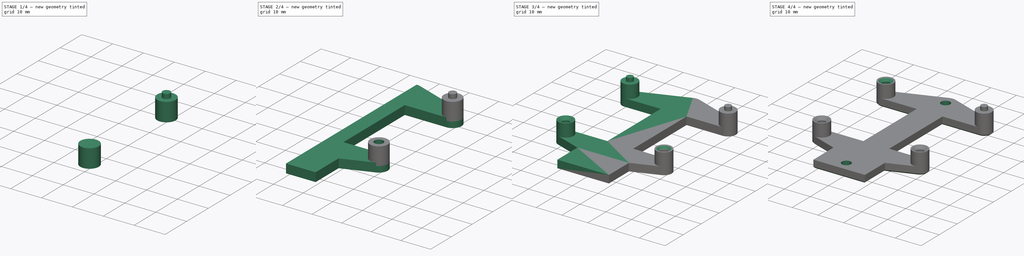
[diagram: build sequence overview — one tinted view per stage of 4, left to right]
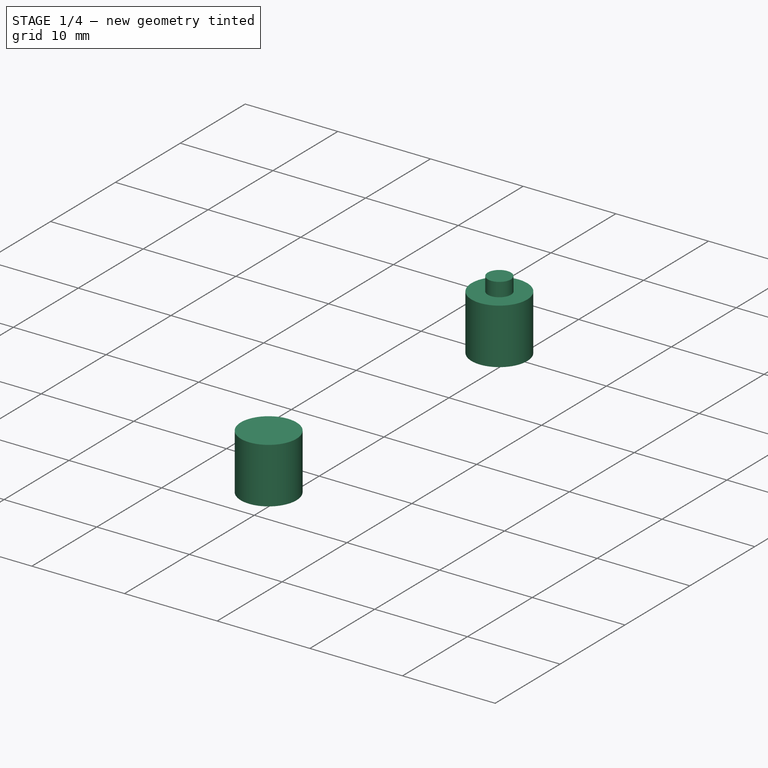
[diagram: stage 1 of 4 — iso view after this stage's code; geometry added in this stage tinted green]
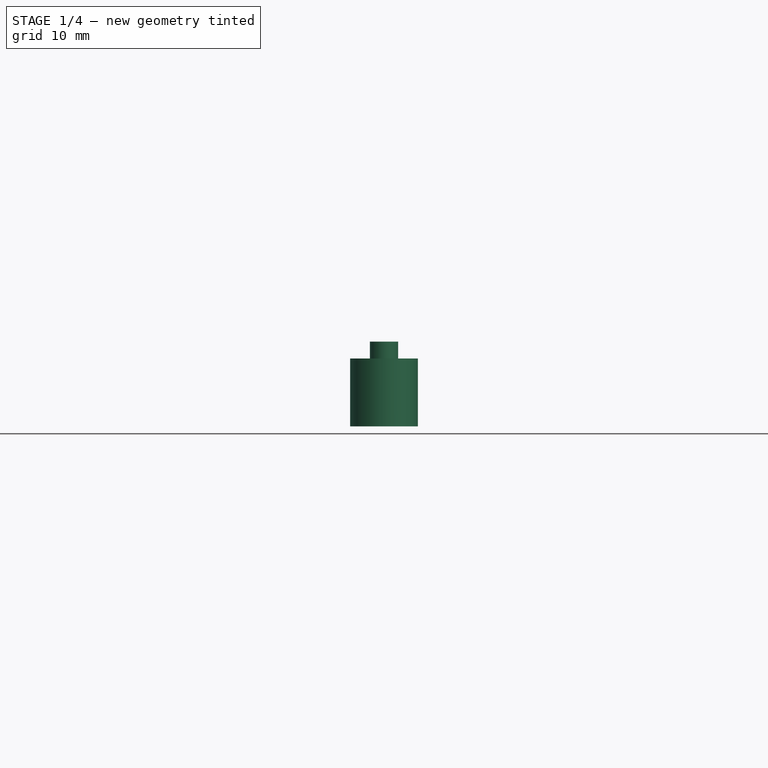
[diagram: stage 1 of 4 — front view after this stage's code; geometry added in this stage tinted green]
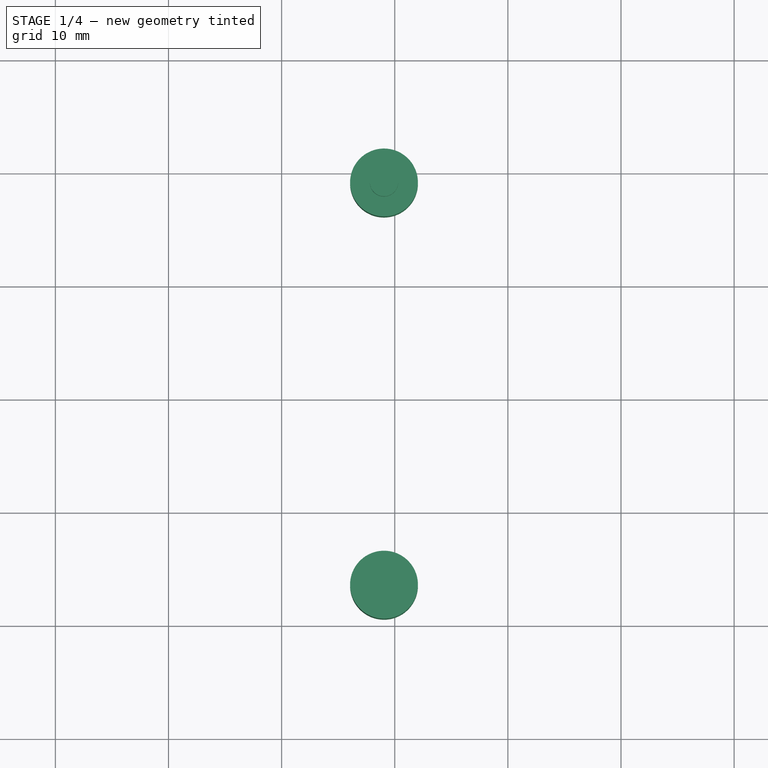
[diagram: stage 1 of 4 — top view after this stage's code; geometry added in this stage tinted green]
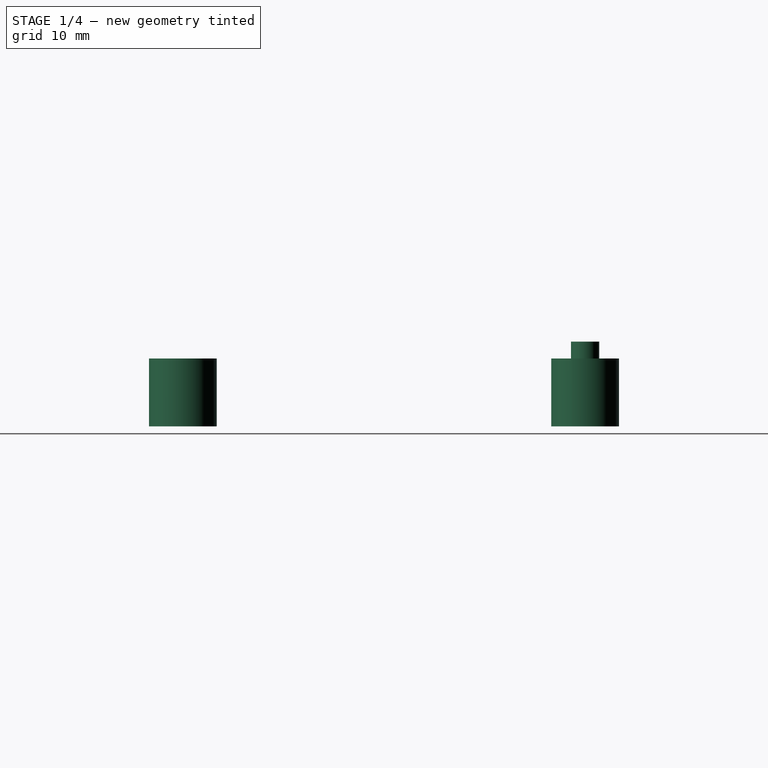
[diagram: stage 1 of 4 — right view after this stage's code; geometry added in this stage tinted green]
FCSTD DOCUMENT  (FreeCAD 0.14R3692 (Git))
Label: Addon-KeypadBracket-5Buttons
License: CC-BY 3.0
LicenseURL: http://creativecommons.org/licenses/by/3.0/
objects: Sketcher::SketchObject×4, Part::Cylinder×3, Part::MultiFuse×3, PartDesign::Pocket×3, Part::Chamfer×3, PartDesign::Pad×1, Part::Mirroring×1
note: 22 computed .brp shape members not serialized (recipe doc carries the construction recipe); baked Part::Feature solids carry a one-line shape summary decoded from their .brp

FEATURE [Part::Cylinder] Cylinder
  Angle = 360
  Height = 6
  Placement = pos=(19.05,13.5705,2) rot=(0,0,1;0rad)
  Radius = 3
FEATURE [Part::Cylinder] Cylinder001
  Angle = 360
  Height = 7.5
  Placement = pos=(0,0,2) rot=(0,0,1;0rad)
  Radius = 1.25
FEATURE [Part::Cylinder] Cylinder002
  Angle = 360
  Height = 6
  Placement = pos=(0,0,2) rot=(0,0,1;0rad)
  Radius = 3
FEATURE [Part::MultiFuse] Fusion
  Placement = pos=(19.05,49.1305,0) rot=(0,0,1;0rad)
  Shapes = -> [Cylinder001,Cylinder002]
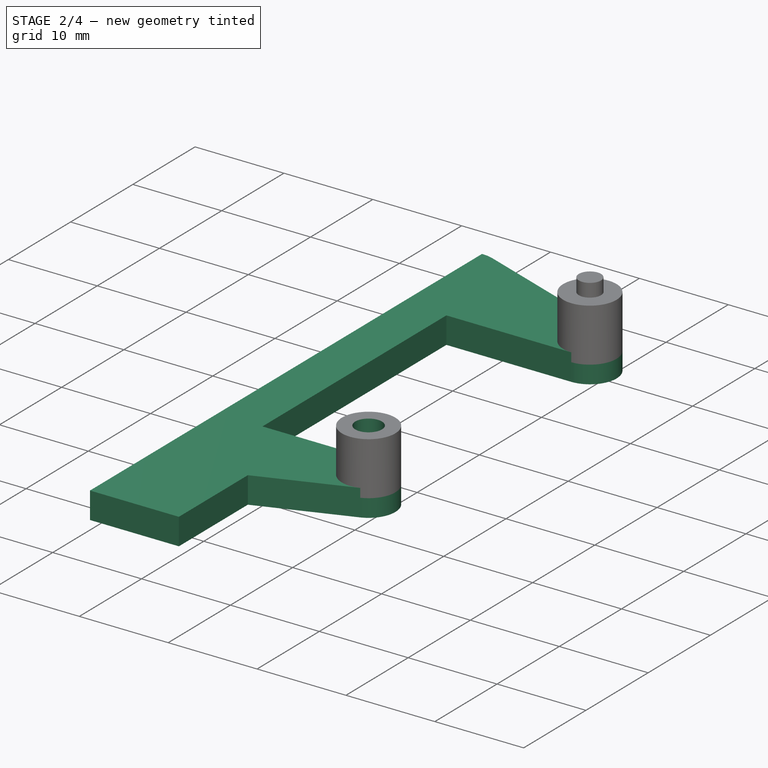
[diagram: stage 2 of 4 — iso view after this stage's code; geometry added in this stage tinted green]
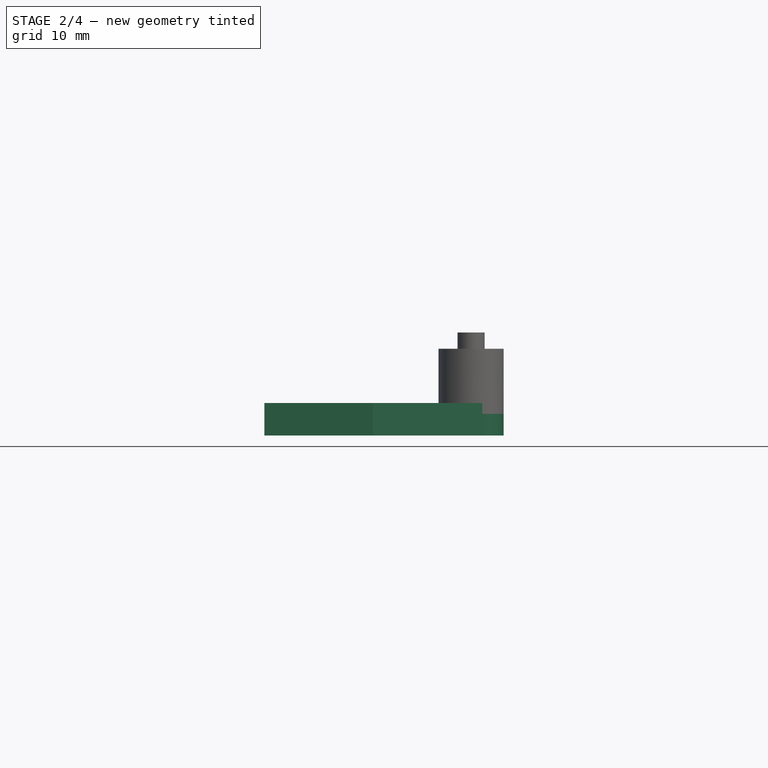
[diagram: stage 2 of 4 — front view after this stage's code; geometry added in this stage tinted green]
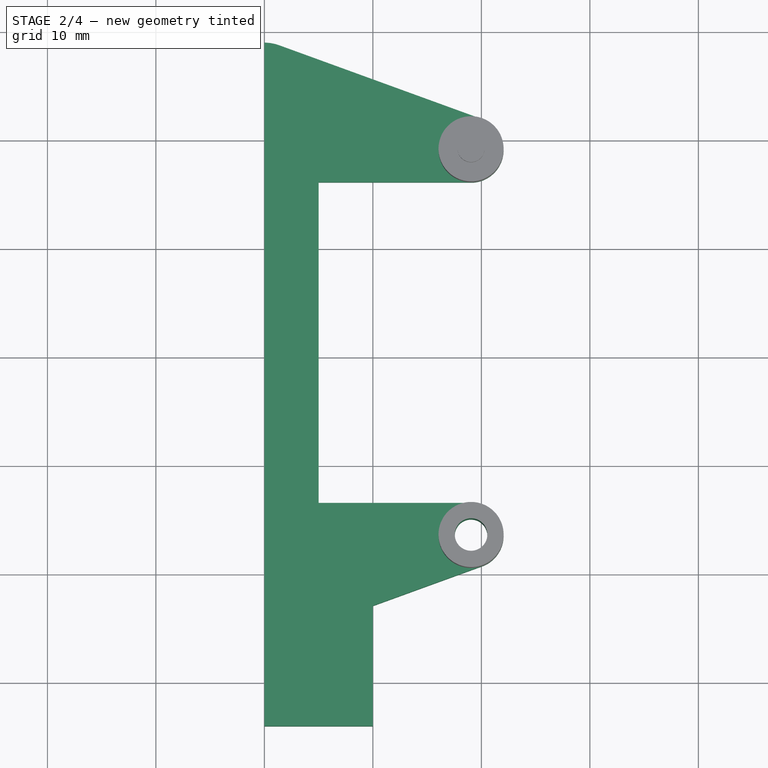
[diagram: stage 2 of 4 — top view after this stage's code; geometry added in this stage tinted green]
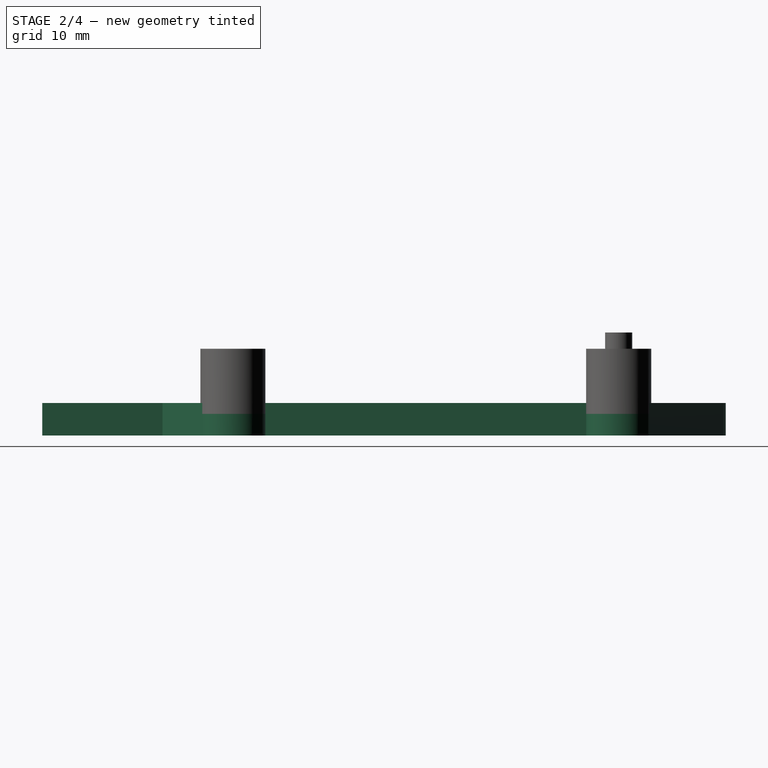
[diagram: stage 2 of 4 — right view after this stage's code; geometry added in this stage tinted green]
FEATURE [Sketcher::SketchObject] Sketch
  sketch-geometry (13):
    g0: GeomPoint [constr] X=0 Y=55 Z=0
    g1: LineSegment StartX=0 StartY=-4 StartZ=0 EndX=10 EndY=-4 EndZ=0
    g2: LineSegment StartX=10 StartY=-4 StartZ=0 EndX=10 EndY=7.08408 EndZ=0
    g3: LineSegment StartX=10 StartY=7.08408 StartZ=0 EndX=20.0761 EndY=10.7515 EndZ=0
    g4: ArcOfCircle CenterX=19.05 CenterY=13.5705 CenterZ=0 NormalX=0 NormalY=0 NormalZ=1 Radius=3 StartAngle=5.06145 EndAngle=7.85398
    g5: LineSegment StartX=19.05 StartY=16.5705 StartZ=0 EndX=5 EndY=16.5705 EndZ=0
    g6: LineSegment StartX=5 StartY=16.5705 StartZ=0 EndX=5 EndY=46.1305 EndZ=0
    g7: LineSegment StartX=5 StartY=46.1305 StartZ=0 EndX=19.05 EndY=46.1305 EndZ=0
    g8: ArcOfCircle CenterX=19.05 CenterY=49.1305 CenterZ=0 NormalX=0 NormalY=0 NormalZ=1 Radius=3 StartAngle=4.71239 EndAngle=7.50492
    g9: LineSegment StartX=20.0761 StartY=51.9496 StartZ=0 EndX=1.36808 EndY=58.7588 EndZ=0
    g10: ArcOfCircle CenterX=0 CenterY=55 CenterZ=0 NormalX=0 NormalY=0 NormalZ=1 Radius=4 StartAngle=1.22173 EndAngle=1.5708
    g11: LineSegment StartX=0 StartY=59 StartZ=0 EndX=0 EndY=-4 EndZ=0
    g12: LineSegment [constr] StartX=19.05 StartY=49.1305 StartZ=0 EndX=19.05 EndY=13.5705 EndZ=0
  constraints (34):
    c: PointOnObject(g0,g-2)
    c: PointOnObject(g1,g-2)
    c: Horizontal(g1)
    c: Coincident(g1,g2)
    c: Vertical(g2)
    c: Coincident(g2,g3)
    c: Tangent(g3,g4)
    c: Tangent(g4,g5)
    c: Coincident(g5,g6)
    c: Vertical(g6)
    c: Coincident(g6,g7)
    c: Tangent(g7,g8)
    c: Tangent(g8,g9)
    c: Tangent(g9,g10)
    c: Coincident(g10,g11)
    c: Coincident(g11,g1)
    c: Perpendicular(g11,g10)
    c: Coincident(g10,g0)
    c: Radius(g10) = 4
    c: Radius(g8) = 3
    c: Equal(g8,g4)
    c: Angle(g9,g7) = 0.349066
    c: Angle(g5,g3) = 0.349066
    c: Coincident(g12,g8)
    c: Coincident(g12,g4)
    c: Vertical(g12)
    c: DistanceY(g12) = -35.56
    c: DistanceX(g1) = 10
    c: DistanceX(g5) = 5
    c: DistanceX(g-1,g4) = 19.05
    c: Horizontal(g5)
    c: Horizontal(g7)
    c: DistanceY(g-1,g1) = -4
    c: DistanceY(g-1,g0) = 55
FEATURE [PartDesign::Pad] Pad
  Length = 3
  Length2 = 100
  Sketch = -> Sketch
  Type = 0
FEATURE [Part::MultiFuse] Fusion004
  Shapes = -> [Fusion,Cylinder,Pad]
FEATURE [Sketcher::SketchObject] Sketch003
  ExternalGeometry = -> [Fusion004]
  Placement = pos=(0,0,8) rot=(0,0,1;0rad)
  Support = -> Fusion004 [Face19]
  sketch-geometry (1):
    g0: Circle CenterX=19.05 CenterY=13.5705 CenterZ=0 NormalX=0 NormalY=0 NormalZ=1 Radius=1.5
  constraints (2):
    c: Radius(g0) = 1.5
    c: Coincident(g0,g-3)
FEATURE [PartDesign::Pocket] Pocket002
  Length = 10
  Sketch = -> Sketch003
  Type = 0
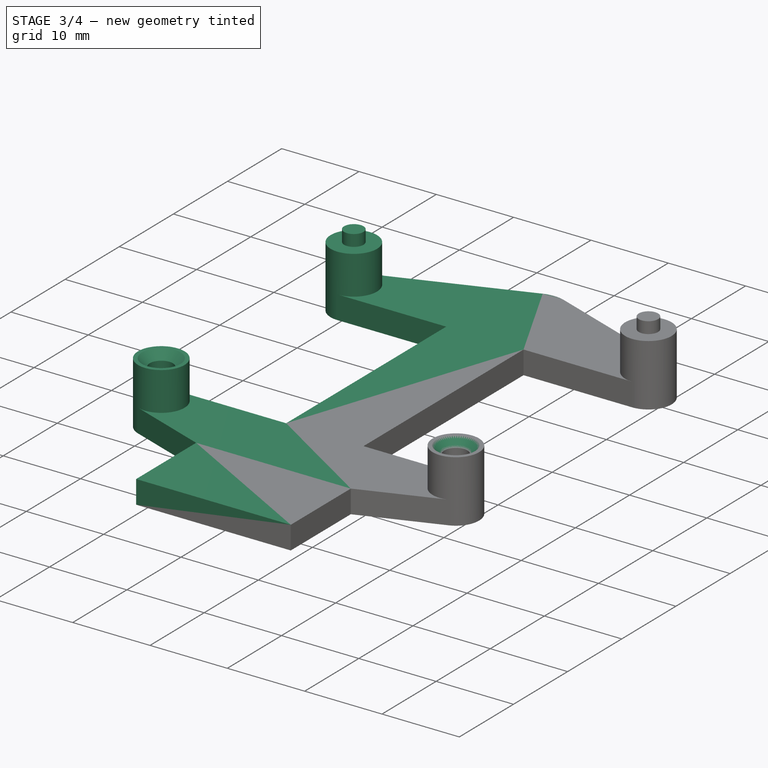
[diagram: stage 3 of 4 — iso view after this stage's code; geometry added in this stage tinted green]
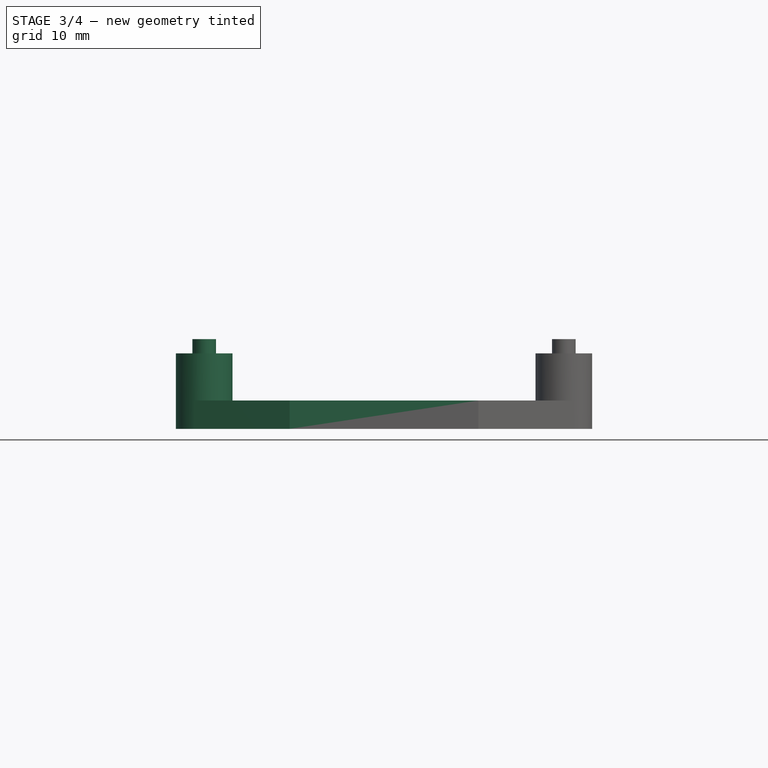
[diagram: stage 3 of 4 — front view after this stage's code; geometry added in this stage tinted green]
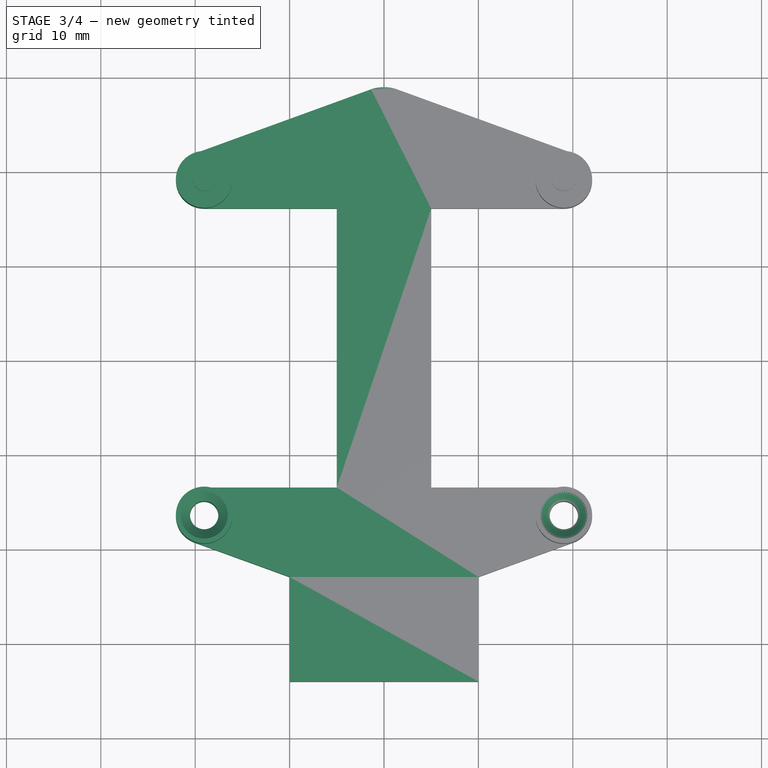
[diagram: stage 3 of 4 — top view after this stage's code; geometry added in this stage tinted green]
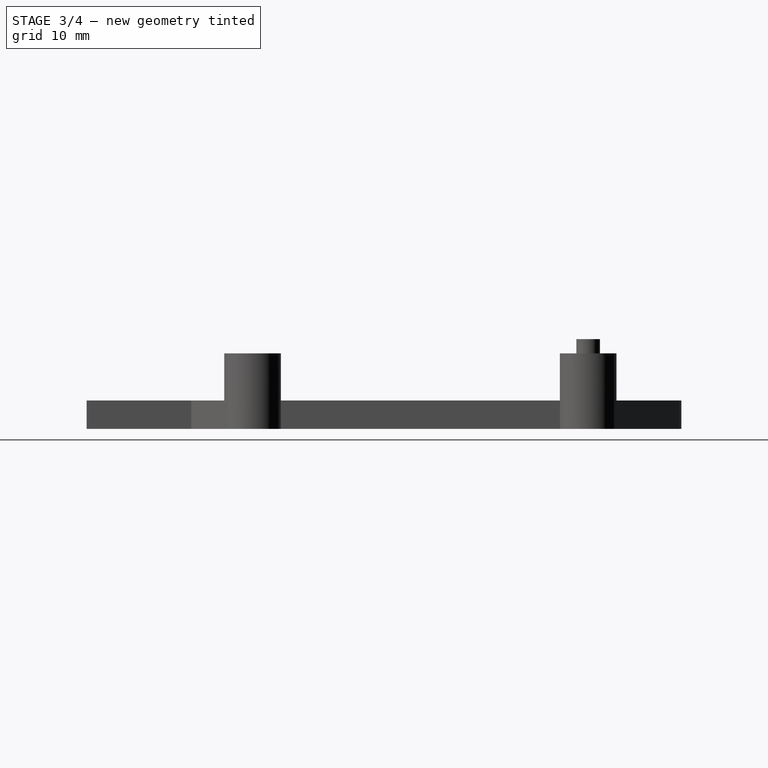
[diagram: stage 3 of 4 — right view after this stage's code; geometry added in this stage tinted green]
FEATURE [Part::Chamfer] Chamfer002
  Base = -> Pocket002
  Edges = 1 edges r=1: [Edge39]
FEATURE [Part::Mirroring] Part__Mirroring  label="Chamfer002 (Mirror #1)"
  Base = (0,0,0)
  Normal = (1,0,0)
  Source = -> Chamfer002
FEATURE [Part::MultiFuse] Fusion003
  Shapes = -> [Chamfer002,Part__Mirroring]
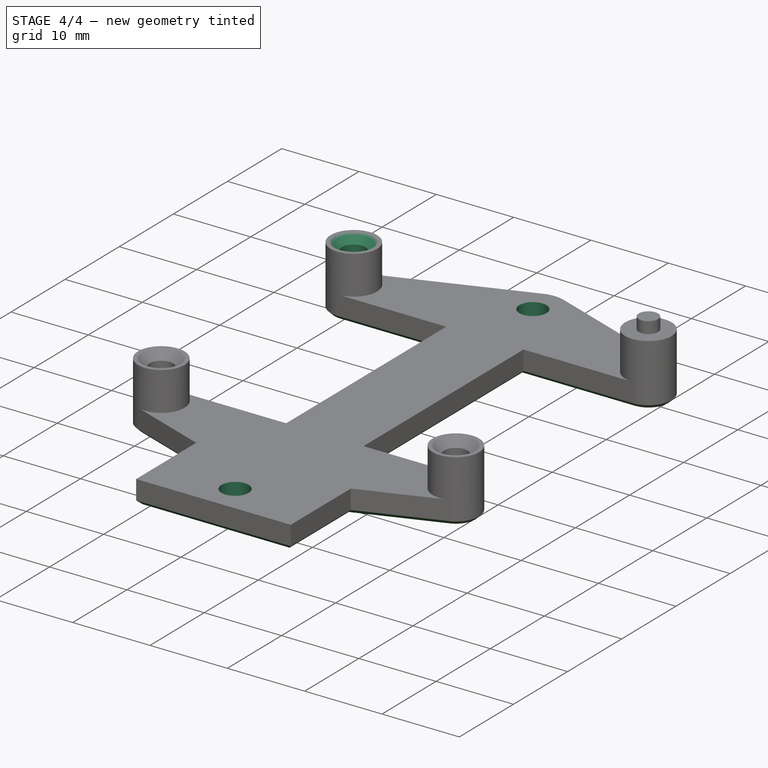
[diagram: stage 4 of 4 — iso view after this stage's code; geometry added in this stage tinted green]
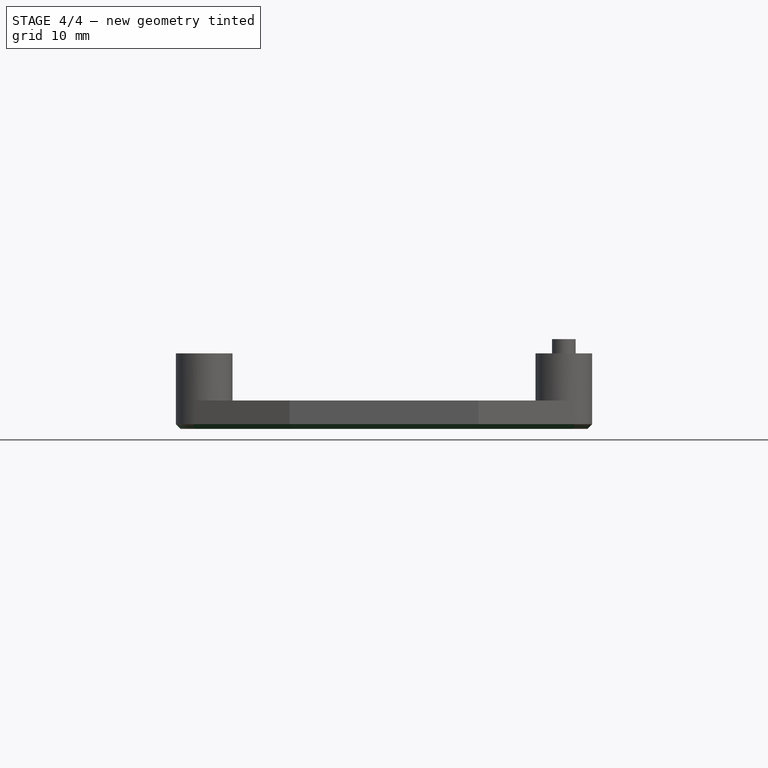
[diagram: stage 4 of 4 — front view after this stage's code; geometry added in this stage tinted green]
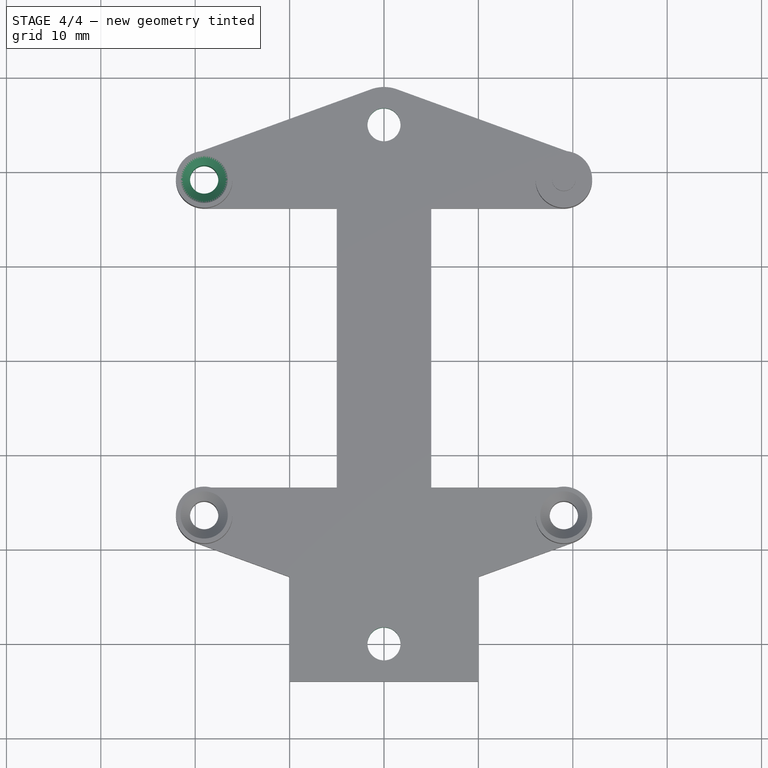
[diagram: stage 4 of 4 — top view after this stage's code; geometry added in this stage tinted green]
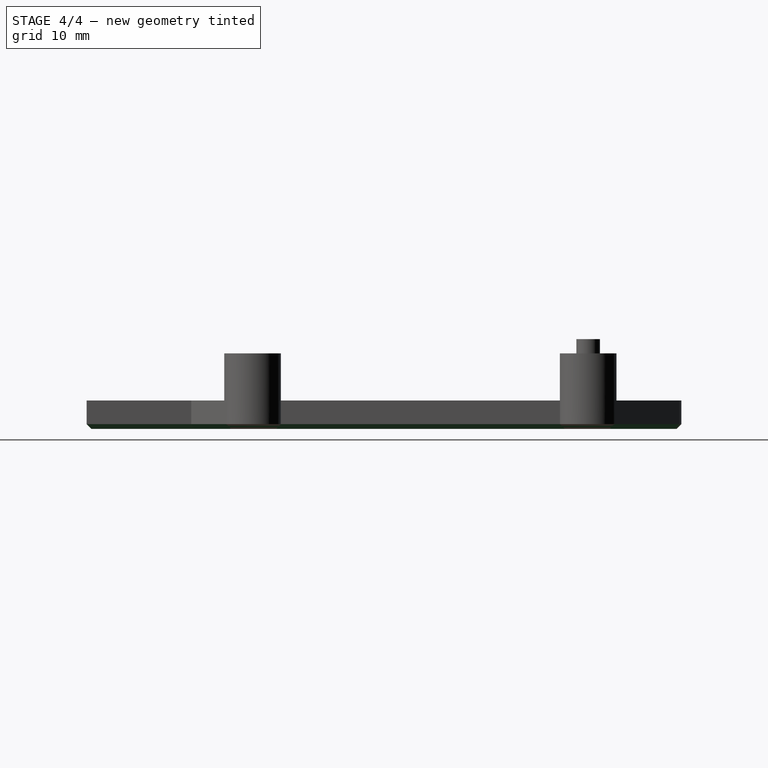
[diagram: stage 4 of 4 — right view after this stage's code; geometry added in this stage tinted green]
FEATURE [Sketcher::SketchObject] Sketch005
  ExternalGeometry = -> [Fusion003]
  Placement = pos=(0,0,0) rot=(1,0,0;3.14159rad)
  Support = -> Fusion003 [Face17]
  sketch-geometry (1):
    g0: Circle CenterX=-19.05 CenterY=-49.1305 CenterZ=0 NormalX=0 NormalY=0 NormalZ=1 Radius=1.5
  constraints (2):
    c: Coincident(g0,g-3)
    c: Radius(g0) = 1.5
FEATURE [PartDesign::Pocket] Pocket003
  Length = 10
  Sketch = -> Sketch005
  Type = 0
FEATURE [Part::Chamfer] Chamfer003
  Base = -> Pocket003
  Edges = 1 edges r=1: [Edge32]
FEATURE [Sketcher::SketchObject] Sketch004
  Placement = pos=(0,0,3) rot=(0,0,1;0rad)
  Support = -> Chamfer003 [Face27]
  sketch-geometry (2):
    g0: Circle CenterX=0 CenterY=0 CenterZ=0 NormalX=0 NormalY=0 NormalZ=1 Radius=1.75
    g1: Circle CenterX=0 CenterY=55 CenterZ=0 NormalX=0 NormalY=0 NormalZ=1 Radius=1.75
  constraints (5):
    c: Coincident(g0,g-1)
    c: Radius(g0) = 1.75
    c: PointOnObject(g1,g-2)
    c: Equal(g1,g0)
    c: DistanceY(g-1,g1) = 55
FEATURE [PartDesign::Pocket] Pocket
  Length = 5
  Sketch = -> Sketch004
  Type = 0
FEATURE [Part::Chamfer] Chamfer
  Base = -> Pocket
  Edges = 28 edges r=0.5: [Edge3,Edge8,Edge9,Edge10,Edge11,Edge12,Edge13,Edge14,Edge15,Edge16,Edge17,Edge18,Edge19,Edge20,Edge21,Edge22,Edge23,Edge24,Edge25,Edge26,Edge27,Edge28,Edge29,Edge30,Edge31,Edge32,Edge33,Edge34]
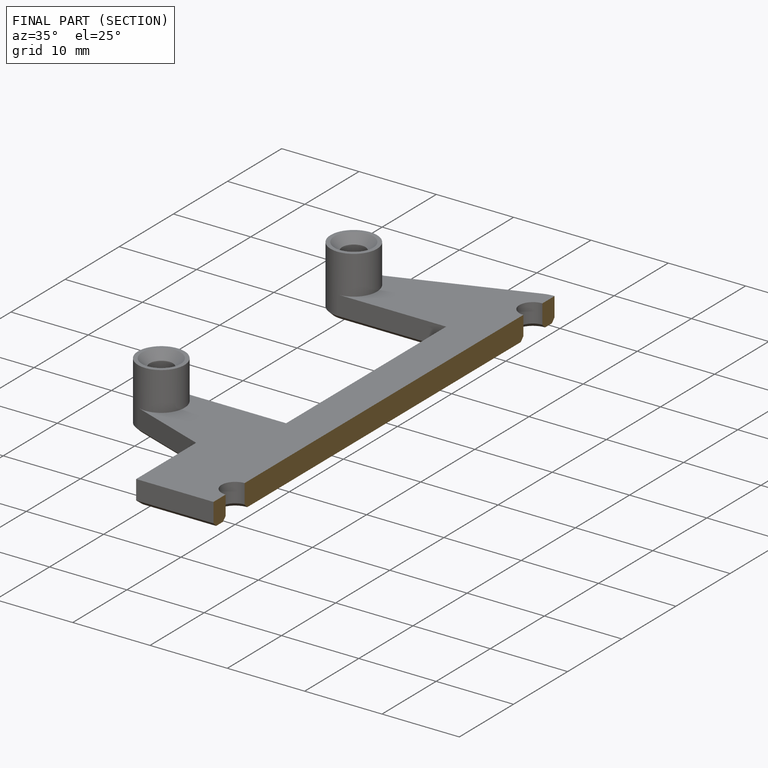
[diagram: finished part — half-section view (interior)]
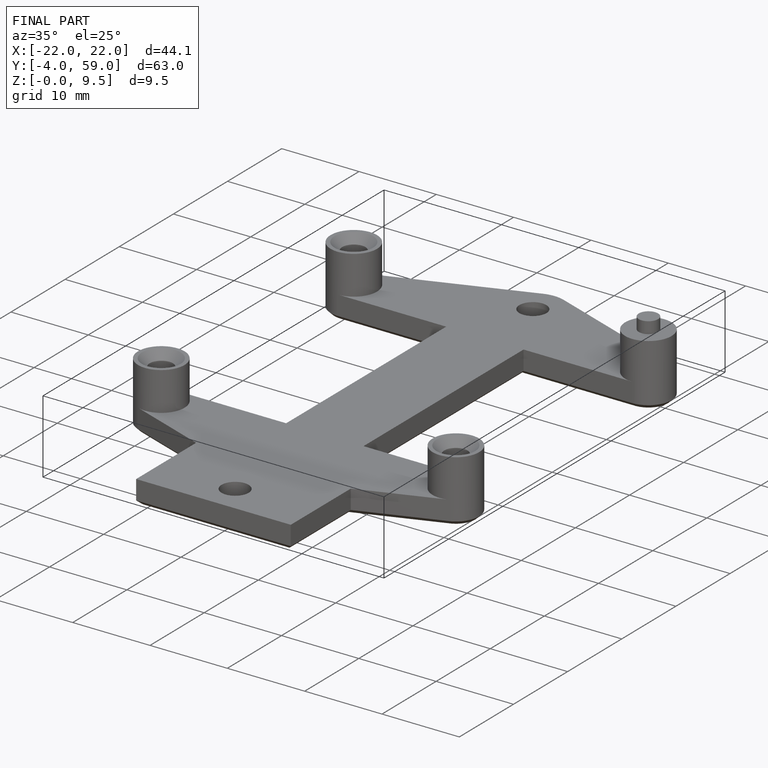
[diagram: finished part — iso view with bounding-box wireframe]
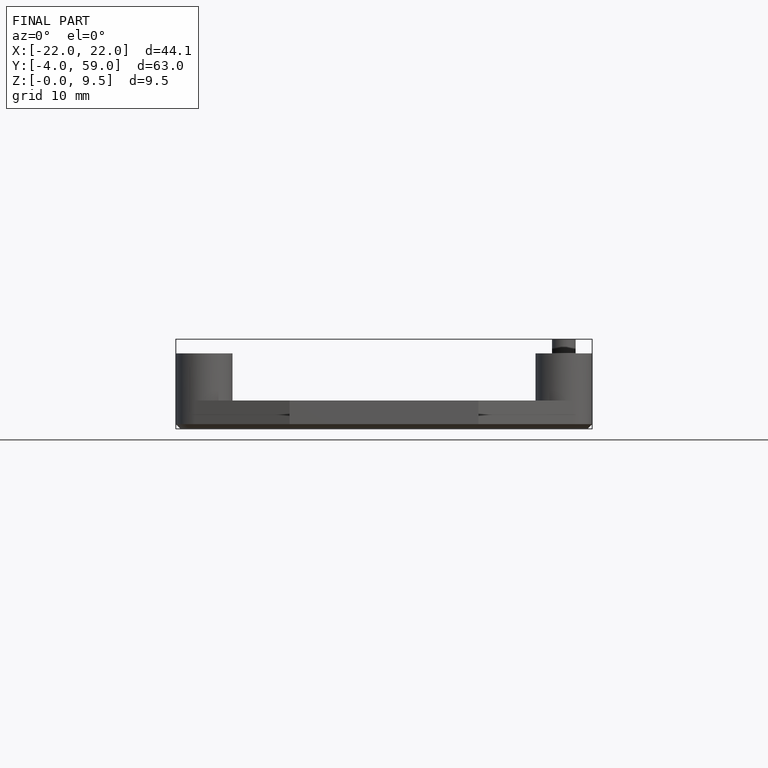
[diagram: finished part — front view with bounding-box wireframe]
